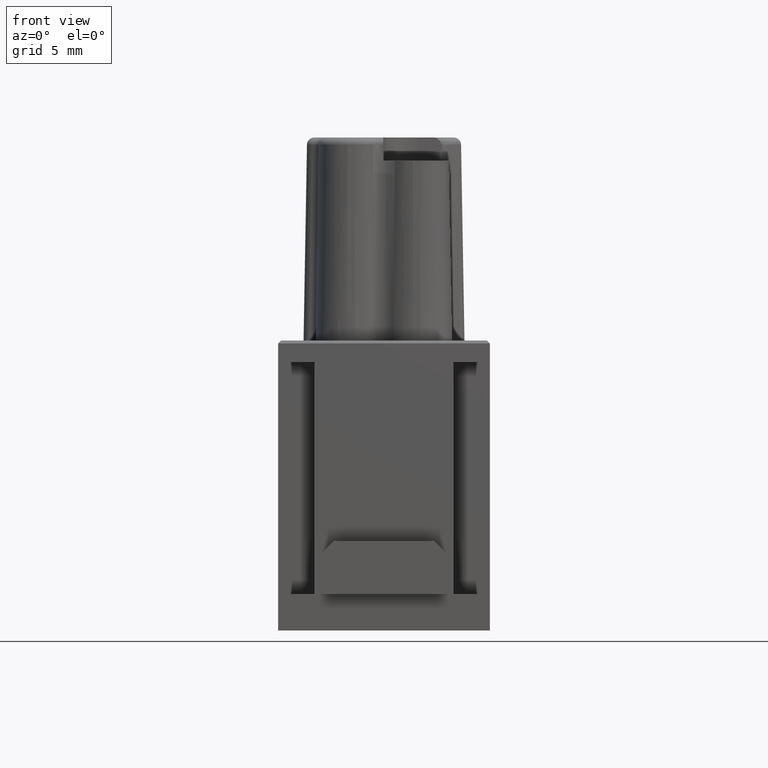
[diagram: clean part render]
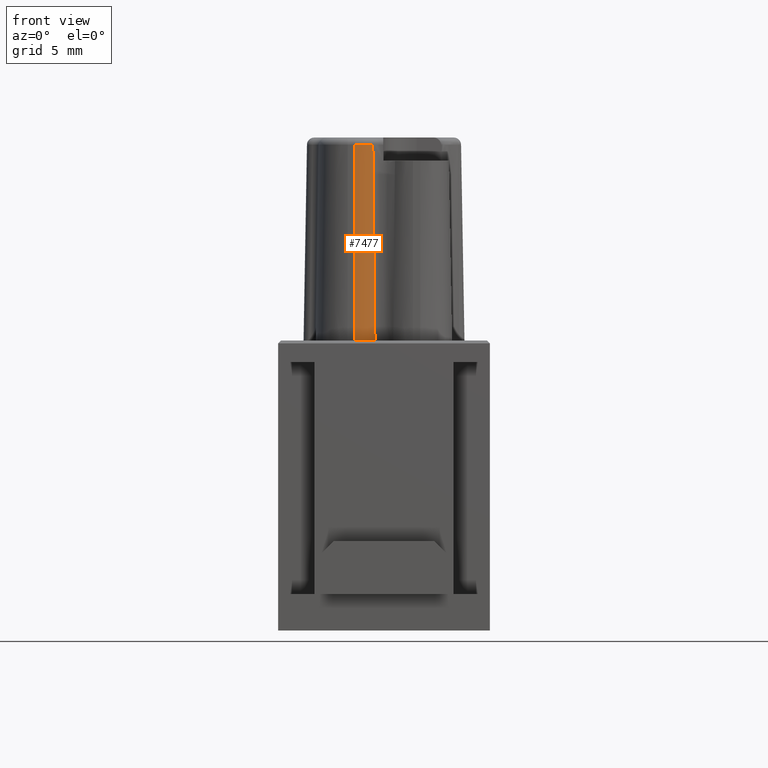
[diagram: same view with one face highlighted and labeled with its STEP entity id]
A machine part, front view. The second image highlights one B-rep face of the part: STEP entity #7477.
In plain terms, the highlighted conical surface has half-angle 1 deg.
Its self-contained STEP definition (entity closure, byte-faithful):
#610=DIRECTION('',(1.090775402215E-2,-1.362378040930E-2,-9.998476951564E-1));
#611=VECTOR('',#610,1.351078396106E1);
#612=CARTESIAN_POINT('',(-7.723723081094E-1,-1.303330649573E1,
3.350872620322E1));
#613=LINE('',#612,#611);
#614=DIRECTION('',(0.E0,-1.745240643723E-2,-9.998476951564E-1));
#615=VECTOR('',#614,1.351078396106E1);
#616=CARTESIAN_POINT('',(-2.E0,-1.346420430703E1,3.350872620322E1));
#617=LINE('',#616,#615);
#730=CARTESIAN_POINT('',(-2.E0,-1.15E1,2.E1));
#731=DIRECTION('',(0.E0,0.E0,-1.E0));
#732=DIRECTION('',(6.249999999811E-1,-7.806247498150E-1,0.E0));
#733=AXIS2_PLACEMENT_3D('',#730,#731,#732);
#3827=CARTESIAN_POINT('',(-2.E0,-1.15E1,3.350872620322E1));
#3828=DIRECTION('',(0.E0,0.E0,1.E0));
#3829=DIRECTION('',(0.E0,-1.E0,0.E0));
#3830=AXIS2_PLACEMENT_3D('',#3827,#3828,#3829);
#4128=CARTESIAN_POINT('',(-2.E0,-1.346420430703E1,3.350872620322E1));
#4129=VERTEX_POINT('',#4128);
#4130=CARTESIAN_POINT('',(-2.E0,-1.37E1,2.E1));
#4131=VERTEX_POINT('',#4130);
#4132=CARTESIAN_POINT('',(-6.250000000415E-1,-1.321737444959E1,2.E1));
#4133=VERTEX_POINT('',#4132);
#4134=CARTESIAN_POINT('',(-7.723723081094E-1,-1.303330649573E1,
3.350872620322E1));
#4135=VERTEX_POINT('',#4134);
#7463=CARTESIAN_POINT('',(-2.E0,-1.15E1,2.675436310161E1));
#7464=DIRECTION('',(0.E0,0.E0,-1.E0));
#7465=DIRECTION('',(-1.E0,0.E0,0.E0));
#7466=AXIS2_PLACEMENT_3D('',#7463,#7464,#7465);
#7467=CONICAL_SURFACE('',#7466,2.082102153513E0,1.E0);
#7469=ORIENTED_EDGE('',*,*,#7468,.F.);
#7471=ORIENTED_EDGE('',*,*,#7470,.T.);
#7472=ORIENTED_EDGE('',*,*,#7450,.T.);
#7474=ORIENTED_EDGE('',*,*,#7473,.T.);
#7475=EDGE_LOOP('',(#7469,#7471,#7472,#7474));
#7476=FACE_OUTER_BOUND('',#7475,.F.);
#7477=ADVANCED_FACE('',(#7476),#7467,.T.);
#734=CIRCLE('',#733,2.2E0);
#3831=CIRCLE('',#3830,1.964204307025E0);
#7450=EDGE_CURVE('',#4135,#4133,#613,.T.);
#7468=EDGE_CURVE('',#4129,#4131,#617,.T.);
#7470=EDGE_CURVE('',#4129,#4135,#3831,.T.);
#7473=EDGE_CURVE('',#4133,#4131,#734,.T.);